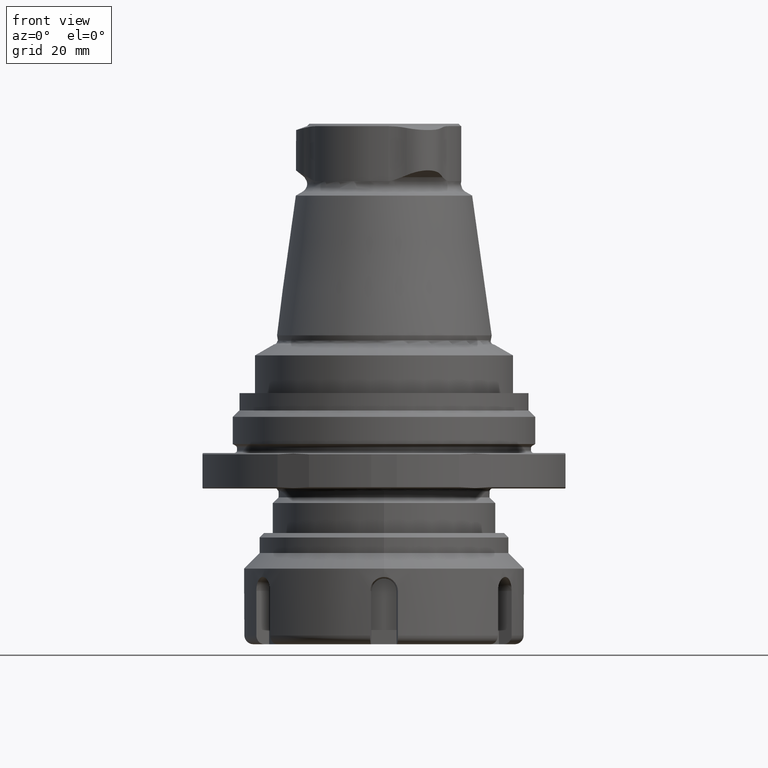
[diagram: clean part render]
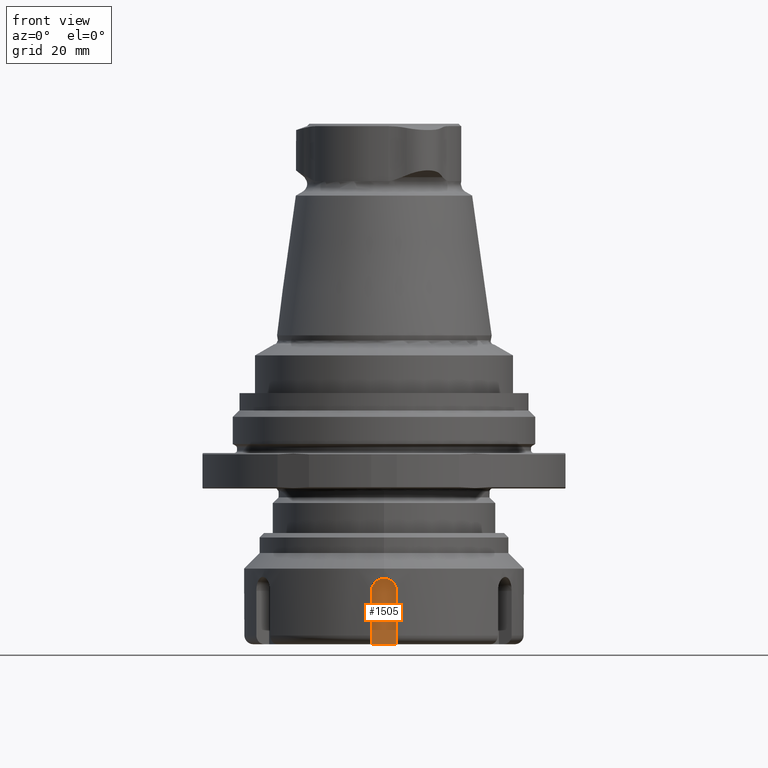
[diagram: same view with one face highlighted and labeled with its STEP entity id]
A machine part, front view. The second image highlights one B-rep face of the part: STEP entity #1505.
In plain terms, the highlighted planar face has unit normal (-0, 1, 0).
Its self-contained STEP definition (entity closure, byte-faithful):
#78=LINE('',#2318,#160);
#79=LINE('',#2320,#161);
#80=LINE('',#2322,#162);
#160=VECTOR('',#1857,1000.);
#161=VECTOR('',#1858,1000.);
#162=VECTOR('',#1859,1000.);
#235=PLANE('',#1629);
#345=ORIENTED_EDGE('',*,*,#775,.T.);
#346=ORIENTED_EDGE('',*,*,#776,.F.);
#347=ORIENTED_EDGE('',*,*,#777,.T.);
#348=ORIENTED_EDGE('',*,*,#778,.T.);
#775=EDGE_CURVE('',#992,#993,#1136,.T.);
#776=EDGE_CURVE('',#994,#993,#78,.T.);
#777=EDGE_CURVE('',#994,#995,#79,.T.);
#778=EDGE_CURVE('',#995,#992,#80,.T.);
#992=VERTEX_POINT('',#2316);
#993=VERTEX_POINT('',#2317);
#994=VERTEX_POINT('',#2319);
#995=VERTEX_POINT('',#2321);
#1136=CIRCLE('',#1630,2.8);
#1229=EDGE_LOOP('',(#345,#346,#347,#348));
#1364=FACE_BOUND('',#1229,.T.);
#1505=ADVANCED_FACE('',(#1364),#235,.F.);
#1629=AXIS2_PLACEMENT_3D('',#2314,#1853,#1854);
#1630=AXIS2_PLACEMENT_3D('',#2315,#1855,#1856);
#1853=DIRECTION('',(-4.44089209850063E-16,1.,0.));
#1854=DIRECTION('',(0.,0.,-1.));
#1855=DIRECTION('',(4.44089209850063E-16,-1.,0.));
#1856=DIRECTION('',(0.,0.,1.));
#1857=DIRECTION('',(0.,0.,1.));
#1858=DIRECTION('',(1.,3.88578058618805E-16,0.));
#1859=DIRECTION('',(0.,0.,1.));
#2314=CARTESIAN_POINT('',(2.80000000000001,-28.2,-124.536479293304));
#2315=CARTESIAN_POINT('',(8.66567830045761E-15,-28.2,-32.));
#2316=CARTESIAN_POINT('',(2.80000000000001,-28.2,-32.));
#2317=CARTESIAN_POINT('',(-2.8,-28.2,-32.));
#2318=CARTESIAN_POINT('',(-2.79999999999999,-28.2,-124.536479293304));
#2319=CARTESIAN_POINT('',(-2.79999999999999,-28.2,-44.));
#2320=CARTESIAN_POINT('',(1.25233157177718E-14,-28.2,-44.));
#2321=CARTESIAN_POINT('',(2.80000000000001,-28.2,-44.));
#2322=CARTESIAN_POINT('',(2.80000000000001,-28.2,-124.536479293304));